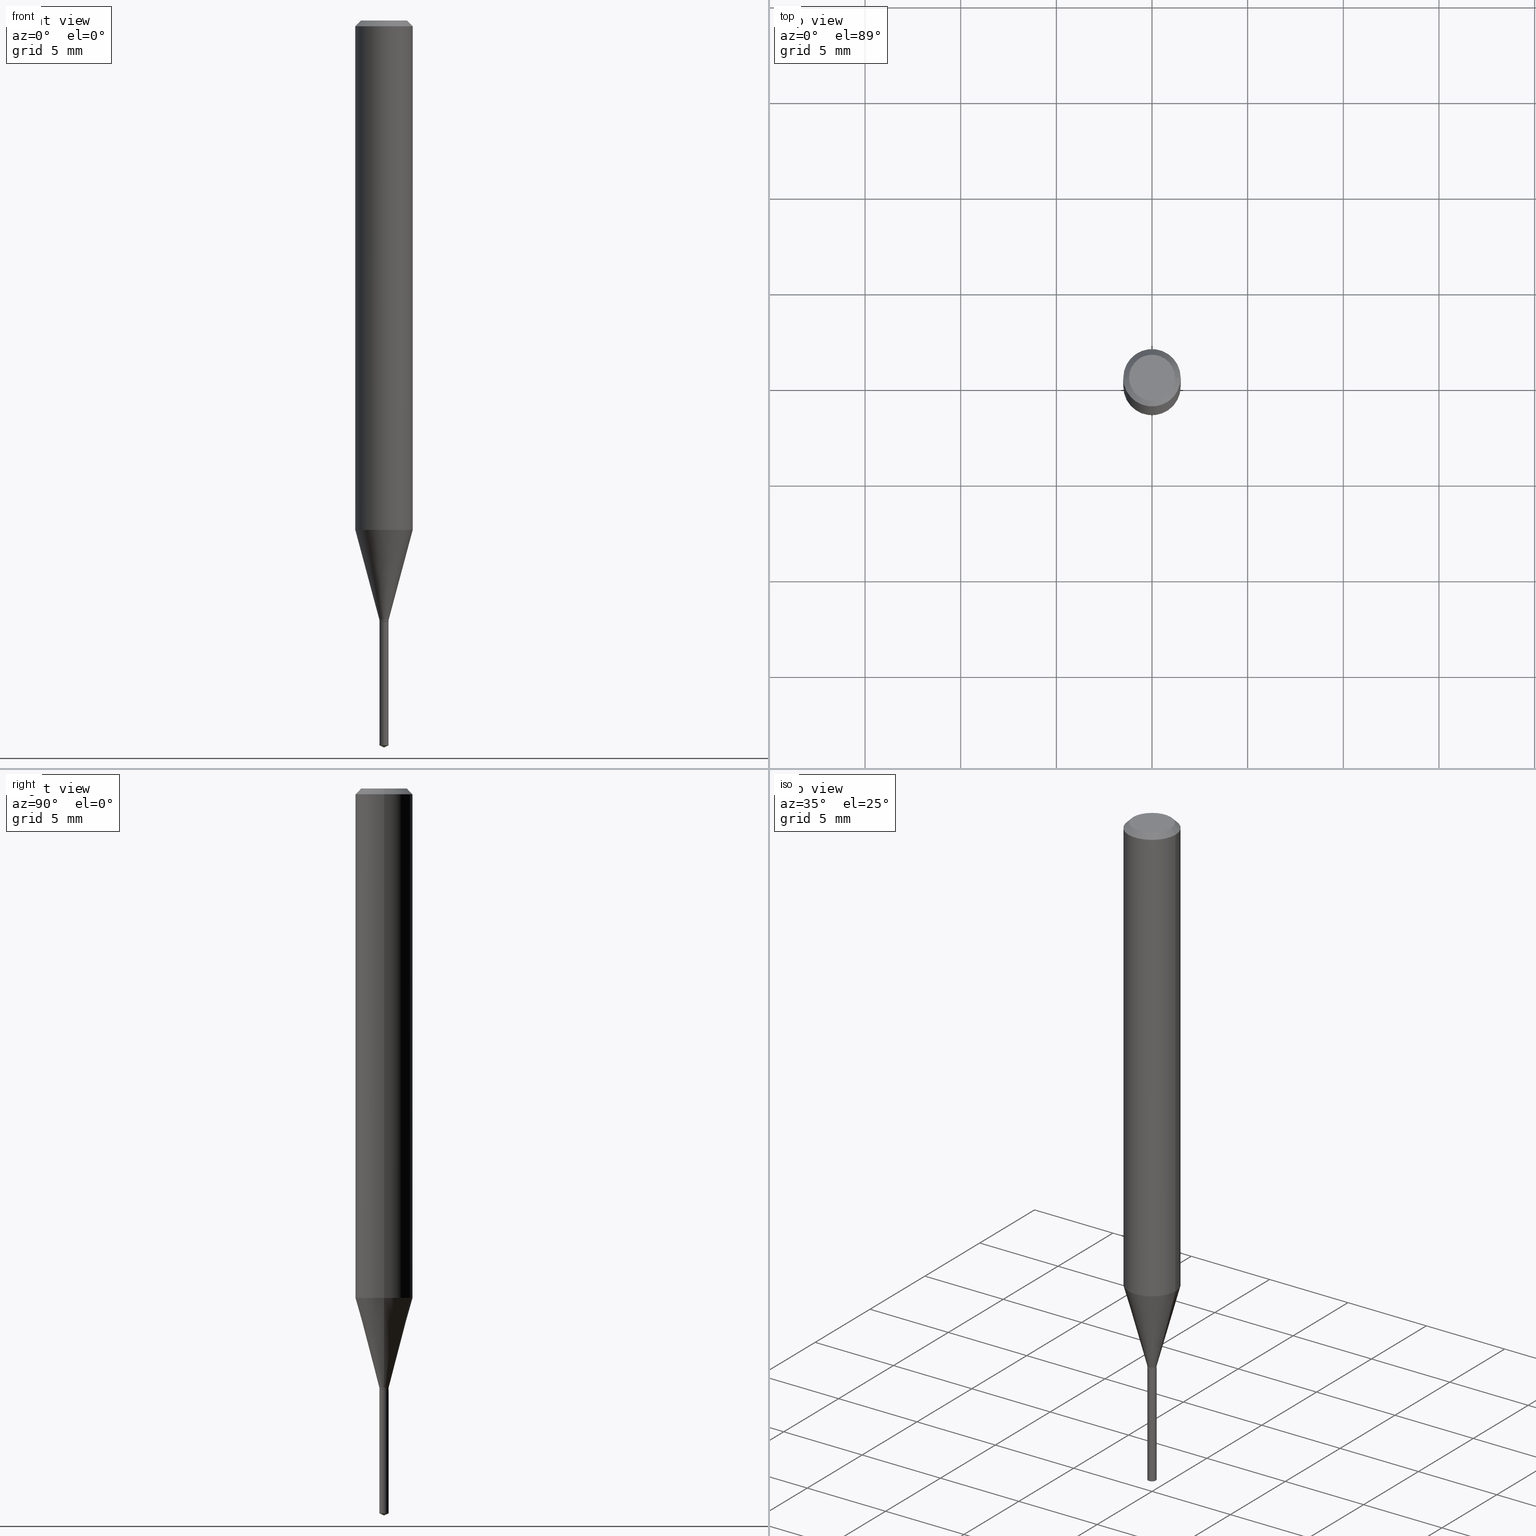
[diagram: canonical four-view strip — front | top / right | iso, engineering-drawing reading convention]
A machine part, canonical four-view strip (front | top / right | iso — engineering-drawing reading convention). The complete STEP part file that produces these views, byte-faithful:
ISO-10303-21;
HEADER;
FILE_DESCRIPTION (( 'STEP AP203' ),
    '1' );
FILE_NAME ('07767.STEP',
    '2024-04-24T02:36:00',
    ( '' ),
    ( '' ),
    'SwSTEP 2.0',
    'SolidWorks 2023',
    '' );
FILE_SCHEMA (( 'CONFIG_CONTROL_DESIGN' ));
ENDSEC;

DATA;
#1 = CARTESIAN_POINT ( 'NONE',  ( 3.658681167148986974E-29, -5.223583815807360950E-15, -1.496099999999999985 ) ) ;
#2 = EDGE_CURVE ( 'NONE', #345, #217, #260, .T. ) ;
#3 = DIRECTION ( 'NONE',  ( 1.000000000000000000, -6.982962677686267499E-15, 4.876176775795935793E-29 ) ) ;
#4 = DIRECTION ( 'NONE',  ( -2.445468806185136597E-29, 3.491481338843145583E-15, 1.000000000000000000 ) ) ;
#5 = CLOSED_SHELL ( 'NONE', ( #135, #232, #242, #255, #59, #193, #200, #272, #362, #93, #406, #195 ) ) ;
#6 = AXIS2_PLACEMENT_3D ( 'NONE', #215, #261, #356 ) ;
#7 = DIRECTION ( 'NONE',  ( -2.445468806185136597E-29, 3.491481338843145583E-15, 1.000000000000000000 ) ) ;
#8 = FACE_OUTER_BOUND ( 'NONE', #462, .T. ) ;
#9 = VERTEX_POINT ( 'NONE', #413 ) ;
#10 = CARTESIAN_POINT ( 'NONE',  ( 3.023333085086683703E-29, -4.316518379211780118E-15, -1.236299999999999955 ) ) ;
#11 = DIRECTION ( 'NONE',  ( -6.982962677686265922E-15, -1.000000000000000000, 0.000000000000000000 ) ) ;
#12 = DIMENSIONAL_EXPONENTS ( 1.000000000000000000, 0.000000000000000000, 0.000000000000000000, 0.000000000000000000, 0.000000000000000000, 0.000000000000000000, 0.000000000000000000 ) ;
#13 = ORIENTED_EDGE ( 'NONE', *, *, #412, .T. ) ;
#14 = AXIS2_PLACEMENT_3D ( 'NONE', #274, #4, #426 ) ;
#15 = CONICAL_SURFACE ( 'NONE', #203, 0.009449999999999998332, 0.2617993877991498519 ) ;
#16 = ORIENTED_EDGE ( 'NONE', *, *, #285, .F. ) ;
#17 = CC_DESIGN_PERSON_AND_ORGANIZATION_ASSIGNMENT ( #301, #265, ( #238 ) ) ;
#18 = APPROVAL_ROLE ( '' ) ;
#19 = VERTEX_POINT ( 'NONE', #214 ) ;
#20 = ADVANCED_BREP_SHAPE_REPRESENTATION ( '07767', ( #453, #446, #393 ), #325 ) ;
#21 = APPLICATION_CONTEXT ( 'configuration controlled 3d designs of mechanical parts and assemblies' ) ;
#22 = EDGE_CURVE ( 'NONE', #19, #319, #56, .T. ) ;
#23 = DIRECTION ( 'NONE',  ( 1.000000000000000000, 0.000000000000000000, 0.000000000000000000 ) ) ;
#24 = ORIENTED_EDGE ( 'NONE', *, *, #382, .T. ) ;
#25 = VECTOR ( 'NONE', #141, 39.37007874015748143 ) ;
#26 = FACE_OUTER_BOUND ( 'NONE', #434, .T. ) ;
#27 = CIRCLE ( 'NONE', #37, 0.008949999999999999623 ) ;
#28 = APPROVAL ( #489, 'UNSPECIFIED' ) ;
#29 = CIRCLE ( 'NONE', #87, 0.009449999999999998332 ) ;
#30 =( CONVERSION_BASED_UNIT ( 'INCH', #256 ) LENGTH_UNIT ( ) NAMED_UNIT ( #12 ) );
#31 = ORIENTED_EDGE ( 'NONE', *, *, #428, .F. ) ;
#32 = APPROVAL_STATUS ( 'not_yet_approved' ) ;
#33 = VERTEX_POINT ( 'NONE', #75 ) ;
#34 = CARTESIAN_POINT ( 'NONE',  ( 0.000000000000000000, 0.000000000000000000, 0.000000000000000000 ) ) ;
#35 = LINE ( 'NONE', #178, #458 ) ;
#36 = AXIS2_PLACEMENT_3D ( 'NONE', #333, #79, #226 ) ;
#37 = AXIS2_PLACEMENT_3D ( 'NONE', #366, #480, #328 ) ;
#38 = CALENDAR_DATE ( 2024, 23, 4 ) ;
#39 = FACE_OUTER_BOUND ( 'NONE', #318, .T. ) ;
#40 = CC_DESIGN_APPROVAL ( #28, ( #386 ) ) ;
#41 = APPROVAL_DATE_TIME ( #289, #340 ) ;
#42 = LINE ( 'NONE', #185, #244 ) ;
#43 = EDGE_CURVE ( 'NONE', #201, #97, #102, .T. ) ;
#44 = CARTESIAN_POINT ( 'NONE',  ( 6.714628852935969127E-17, 0.009449999999995684075, -1.236299999999999955 ) ) ;
#45 = CARTESIAN_POINT ( 'NONE',  ( 8.265746106709734507E-48, -1.180129479067563789E-33, -3.380025165646692144E-19 ) ) ;
#46 = PERSON ( 'UNSPECIFIED', 'UNSPECIFIED', 'UNSPECIFIED', ('UNSPECIFIED'), ('UNSPECIFIED'), ('UNSPECIFIED') ) ;
#47 = CARTESIAN_POINT ( 'NONE',  ( -0.008949999999999999623, -4.250275577187140643E-15, -1.236299999999999955 ) ) ;
#48 = VECTOR ( 'NONE', #105, 39.37007874015748143 ) ;
#49 = CONICAL_SURFACE ( 'NONE', #96, 84.42940631927592676, 1.134464013796323112 ) ;
#50 = EDGE_LOOP ( 'NONE', ( #210, #475, #444, #278 ) ) ;
#51 = DIRECTION ( 'NONE',  ( 0.2588190451025211281, 1.565188264969622954E-15, 0.9659258262890679791 ) ) ;
#52 = ADVANCED_FACE ( 'NONE', ( #39 ), #350, .T. ) ;
#53 = CARTESIAN_POINT ( 'NONE',  ( 0.000000000000000000, 0.000000000000000000, 0.000000000000000000 ) ) ;
#54 = LINE ( 'NONE', #154, #271 ) ;
#55 = CARTESIAN_POINT ( 'NONE',  ( 3.016485772429365584E-29, -4.306742231463019698E-15, -1.233499999999999819 ) ) ;
#56 = CIRCLE ( 'NONE', #139, 0.05905000000000013016 ) ;
#57 = CARTESIAN_POINT ( 'NONE',  ( -6.598899730410497825E-17, -0.009450000000004316059, -1.236299999999999955 ) ) ;
#58 = DIRECTION ( 'NONE',  ( 1.000000000000000000, -6.982962677686266711E-15, 4.876176775795936353E-29 ) ) ;
#59 = ADVANCED_FACE ( 'NONE', ( #330 ), #419, .T. ) ;
#60 = ORIENTED_EDGE ( 'NONE', *, *, #227, .T. ) ;
#61 = VERTEX_POINT ( 'NONE', #457 ) ;
#62 = CIRCLE ( 'NONE', #400, 0.009450000000000000067 ) ;
#63 = COORDINATED_UNIVERSAL_TIME_OFFSET ( 5, 0, .BEHIND. ) ;
#64 = ORIENTED_EDGE ( 'NONE', *, *, #259, .F. ) ;
#65 = ADVANCED_FACE ( 'NONE', ( #335 ), #74, .T. ) ;
#66 = DIRECTION ( 'NONE',  ( 1.000000000000000000, -6.982962677686266711E-15, 0.000000000000000000 ) ) ;
#67 = ORIENTED_EDGE ( 'NONE', *, *, #103, .F. ) ;
#68 = CC_DESIGN_PERSON_AND_ORGANIZATION_ASSIGNMENT ( #337, #149, ( #386 ) ) ;
#69 = PERSON_AND_ORGANIZATION ( #46, #110 ) ;
#70 = ORIENTED_EDGE ( 'NONE', *, *, #113, .T. ) ;
#71 = DIRECTION ( 'NONE',  ( 2.445468806185136597E-29, -3.491481338843145583E-15, -1.000000000000000000 ) ) ;
#72 = PERSON_AND_ORGANIZATION_ROLE ( 'design_owner' ) ;
#73 = ORIENTED_EDGE ( 'NONE', *, *, #190, .T. ) ;
#74 = CYLINDRICAL_SURFACE ( 'NONE', #449, 0.009450000000000000067 ) ;
#75 = CARTESIAN_POINT ( 'NONE',  ( 0.05904999999999999832, -4.535783407291118600E-16, -0.01181000000000007565 ) ) ;
#76 = CARTESIAN_POINT ( 'NONE',  ( 0.04724000000000000421, -3.852183633974369345E-16, -3.380025165621689721E-19 ) ) ;
#77 = DIRECTION ( 'NONE',  ( -6.982962677686265922E-15, -1.000000000000000000, 0.000000000000000000 ) ) ;
#78 = EDGE_CURVE ( 'NONE', #9, #201, #42, .T. ) ;
#79 = DIRECTION ( 'NONE',  ( 2.438088387897960049E-29, -3.491481338843145188E-15, -1.000000000000000000 ) ) ;
#80 = DIRECTION ( 'NONE',  ( 6.439704144417050863E-15, 0.9063077870366551547, 0.4226182617406882835 ) ) ;
#81 = ORIENTED_EDGE ( 'NONE', *, *, #370, .T. ) ;
#82 = EDGE_CURVE ( 'NONE', #167, #33, #338, .T. ) ;
#83 = CARTESIAN_POINT ( 'NONE',  ( 3.658642969568890811E-29, -5.223638041421501490E-15, -1.496099999999999985 ) ) ;
#84 = DIRECTION ( 'NONE',  ( -2.445468806185136877E-29, 3.491481338843145188E-15, 1.000000000000000000 ) ) ;
#85 = CARTESIAN_POINT ( 'NONE',  ( 3.016485772429365584E-29, -4.306742231463019698E-15, -1.233499999999999819 ) ) ;
#86 = FACE_OUTER_BOUND ( 'NONE', #127, .T. ) ;
#87 = AXIS2_PLACEMENT_3D ( 'NONE', #150, #311, #388 ) ;
#88 = EDGE_CURVE ( 'NONE', #252, #206, #35, .T. ) ;
#89 = DIRECTION ( 'NONE',  ( 1.000000000000000000, -6.982962677686265133E-15, 0.000000000000000000 ) ) ;
#90 = ORIENTED_EDGE ( 'NONE', *, *, #382, .F. ) ;
#91 = CARTESIAN_POINT ( 'NONE',  ( 0.009449999999999998332, -4.372731228767154900E-15, -1.233499999999999819 ) ) ;
#92 = ORIENTED_EDGE ( 'NONE', *, *, #143, .T. ) ;
#93 = ADVANCED_FACE ( 'NONE', ( #101 ), #111, .F. ) ;
#94 = ORIENTED_EDGE ( 'NONE', *, *, #292, .F. ) ;
#95 = CIRCLE ( 'NONE', #14, 0.04724000000000000421 ) ;
#96 = AXIS2_PLACEMENT_3D ( 'NONE', #98, #398, #320 ) ;
#97 = VERTEX_POINT ( 'NONE', #380 ) ;
#98 = CARTESIAN_POINT ( 'NONE',  ( -9.261903463803131862E-28, 1.322371477110797904E-13, 37.87397874015748300 ) ) ;
#99 = DATE_AND_TIME ( #131, #116 ) ;
#100 = ORIENTED_EDGE ( 'NONE', *, *, #249, .T. ) ;
#101 = FACE_OUTER_BOUND ( 'NONE', #341, .T. ) ;
#102 = CIRCLE ( 'NONE', #269, 0.009450000000000000067 ) ;
#103 = EDGE_CURVE ( 'NONE', #167, #283, #168, .T. ) ;
#104 = DIRECTION ( 'NONE',  ( -2.445453492125453683E-29, 3.491503269448233447E-15, 1.000000000000000000 ) ) ;
#105 = DIRECTION ( 'NONE',  ( -2.445453492125453683E-29, 3.491503269448233447E-15, 1.000000000000000000 ) ) ;
#106 = ORIENTED_EDGE ( 'NONE', *, *, #412, .F. ) ;
#107 = CARTESIAN_POINT ( 'NONE',  ( 0.008949999999999999623, -4.379015895177073101E-15, -1.236299999999999955 ) ) ;
#108 = EDGE_CURVE ( 'NONE', #321, #61, #293, .T. ) ;
#109 = CARTESIAN_POINT ( 'NONE',  ( 3.023333085086683703E-29, -4.316518379211780118E-15, -1.236299999999999955 ) ) ;
#110 = ORGANIZATION ( 'UNSPECIFIED', 'UNSPECIFIED', '' ) ;
#111 = PLANE ( 'NONE',  #36 ) ;
#112 = CC_DESIGN_DATE_AND_TIME_ASSIGNMENT ( #99, #286, ( #123 ) ) ;
#113 = EDGE_CURVE ( 'NONE', #19, #33, #354, .T. ) ;
#114 = CARTESIAN_POINT ( 'NONE',  ( -0.05905000000000013016, -3.240859612784714140E-15, -1.048390279944583448 ) ) ;
#115 = AXIS2_PLACEMENT_3D ( 'NONE', #182, #104, #372 ) ;
#116 = LOCAL_TIME ( 22, 36, 0.000000000000000000, #63 ) ;
#117 = ORIENTED_EDGE ( 'NONE', *, *, #279, .F. ) ;
#118 = DIRECTION ( 'NONE',  ( 1.000000000000000000, -6.982962677686266711E-15, 4.876176775795936353E-29 ) ) ;
#119 = CARTESIAN_POINT ( 'NONE',  ( 3.023333085086683703E-29, -4.316518379211780118E-15, -1.236299999999999955 ) ) ;
#120 = DIRECTION ( 'NONE',  ( -2.445468806185136597E-29, 3.491481338843145583E-15, 1.000000000000000000 ) ) ;
#121 = VECTOR ( 'NONE', #355, 39.37007874015748854 ) ;
#122 = AXIS2_PLACEMENT_3D ( 'NONE', #197, #309, #465 ) ;
#123 = PRODUCT_DEFINITION ( 'UNKNOWN', '', #238, #445 ) ;
#124 = DIRECTION ( 'NONE',  ( -2.445468806185136597E-29, 3.491481338843145583E-15, 1.000000000000000000 ) ) ;
#125 = ORIENTED_EDGE ( 'NONE', *, *, #78, .T. ) ;
#126 = EDGE_CURVE ( 'NONE', #283, #167, #95, .T. ) ;
#127 = EDGE_LOOP ( 'NONE', ( #471, #297, #474, #479 ) ) ;
#128 = ORIENTED_EDGE ( 'NONE', *, *, #172, .F. ) ;
#129 = AXIS2_PLACEMENT_3D ( 'NONE', #306, #461, #344 ) ;
#130 = VECTOR ( 'NONE', #470, 39.37007874015748854 ) ;
#131 = CALENDAR_DATE ( 2024, 23, 4 ) ;
#132 = ORIENTED_EDGE ( 'NONE', *, *, #22, .F. ) ;
#133 =( LENGTH_UNIT ( ) NAMED_UNIT ( * ) SI_UNIT ( $, .METRE. ) );
#134 = CARTESIAN_POINT ( 'NONE',  ( -0.009449999999999998332, 6.714628852932945571E-17, -4.648393660290885280E-31 ) ) ;
#135 = ADVANCED_FACE ( 'NONE', ( #148 ), #377, .T. ) ;
#136 = COORDINATED_UNIVERSAL_TIME_OFFSET ( 5, 0, .BEHIND. ) ;
#137 = DIRECTION ( 'NONE',  ( 1.000000000000000000, -6.982962677686266711E-15, 4.876185090822587894E-29 ) ) ;
#138 = UNCERTAINTY_MEASURE_WITH_UNIT (LENGTH_MEASURE( 1.000000000000000082E-05 ), #30, 'distance_accuracy_value', 'NONE');
#139 = AXIS2_PLACEMENT_3D ( 'NONE', #379, #416, #263 ) ;
#140 = CIRCLE ( 'NONE', #237, 0.05905000000000013016 ) ;
#141 = DIRECTION ( 'NONE',  ( -2.445468806185136877E-29, 3.491481338843145188E-15, 1.000000000000000000 ) ) ;
#142 = ORIENTED_EDGE ( 'NONE', *, *, #216, .T. ) ;
#143 = EDGE_CURVE ( 'NONE', #61, #97, #228, .T. ) ;
#144 = CARTESIAN_POINT ( 'NONE',  ( 3.016485772429365584E-29, -4.306742231463019698E-15, -1.233499999999999819 ) ) ;
#145 = ORIENTED_EDGE ( 'NONE', *, *, #467, .T. ) ;
#146 = DIRECTION ( 'NONE',  ( 0.7071067811865452413, -7.319954787623248157E-15, -0.7071067811865497932 ) ) ;
#147 = CIRCLE ( 'NONE', #488, 0.009450000000000000067 ) ;
#148 = FACE_OUTER_BOUND ( 'NONE', #50, .T. ) ;
#149 = PERSON_AND_ORGANIZATION_ROLE ( 'classification_officer' ) ;
#150 = CARTESIAN_POINT ( 'NONE',  ( 3.022110350683592022E-29, -4.314772638542359403E-15, -1.235800000000000010 ) ) ;
#151 = FACE_OUTER_BOUND ( 'NONE', #486, .T. ) ;
#152 = CIRCLE ( 'NONE', #316, 0.009449999999999998332 ) ;
#153 = CONICAL_SURFACE ( 'NONE', #440, 0.009449999999999998332, 0.2617993877991498519 ) ;
#154 = CARTESIAN_POINT ( 'NONE',  ( 3.658642969568891371E-29, -5.223638041421501490E-15, -1.496099999999999985 ) ) ;
#155 = DIRECTION ( 'NONE',  ( -2.445453492125453683E-29, 3.491503269448233447E-15, 1.000000000000000000 ) ) ;
#156 = EDGE_CURVE ( 'NONE', #206, #217, #152, .T. ) ;
#157 = CARTESIAN_POINT ( 'NONE',  ( 0.009449999999999998332, -4.380761635846493816E-15, -1.235800000000000010 ) ) ;
#158 = CYLINDRICAL_SURFACE ( 'NONE', #294, 0.009449999999999998332 ) ;
#159 = AXIS2_PLACEMENT_3D ( 'NONE', #258, #180, #262 ) ;
#160 = ORIENTED_EDGE ( 'NONE', *, *, #454, .F. ) ;
#161 = LOCAL_TIME ( 22, 36, 0.000000000000000000, #181 ) ;
#162 = ADVANCED_FACE ( 'NONE', ( #415 ), #186, .T. ) ;
#163 = EDGE_LOOP ( 'NONE', ( #198, #90 ) ) ;
#164 = EDGE_CURVE ( 'NONE', #395, #252, #305, .T. ) ;
#165 = COORDINATED_UNIVERSAL_TIME_OFFSET ( 5, 0, .BEHIND. ) ;
#166 = ORIENTED_EDGE ( 'NONE', *, *, #285, .T. ) ;
#167 = VERTEX_POINT ( 'NONE', #76 ) ;
#168 = CIRCLE ( 'NONE', #417, 0.04724000000000000421 ) ;
#169 = AXIS2_PLACEMENT_3D ( 'NONE', #456, #257, #253 ) ;
#170 = LOCAL_TIME ( 22, 36, 0.000000000000000000, #136 ) ;
#171 = CARTESIAN_POINT ( 'NONE',  ( 2.888098660104664642E-31, -4.123439461173780879E-17, -0.01181000000000007565 ) ) ;
#172 = EDGE_CURVE ( 'NONE', #319, #373, #332, .T. ) ;
#173 = VERTEX_POINT ( 'NONE', #47 ) ;
#174 = APPLICATION_PROTOCOL_DEFINITION ( 'international standard', 'config_control_design', 1994, #414 ) ;
#175 = ORIENTED_EDGE ( 'NONE', *, *, #2, .F. ) ;
#176 = DIRECTION ( 'NONE',  ( -2.445453492125453683E-29, 3.491503269448233447E-15, 1.000000000000000000 ) ) ;
#177 = PERSON_AND_ORGANIZATION_ROLE ( 'creator' ) ;
#178 = CARTESIAN_POINT ( 'NONE',  ( 0.009449999999999998332, -6.598899730413521381E-17, 4.607987053127158610E-31 ) ) ;
#179 = CLOSED_SHELL ( 'NONE', ( #65, #52, #331, #162, #313 ) ) ;
#180 = DIRECTION ( 'NONE',  ( -2.445453492125453683E-29, 3.491503269448233447E-15, 1.000000000000000000 ) ) ;
#181 = COORDINATED_UNIVERSAL_TIME_OFFSET ( 5, 0, .BEHIND. ) ;
#182 = CARTESIAN_POINT ( 'NONE',  ( -9.261903463803131862E-28, 1.322371477110797904E-13, 37.87397874015748300 ) ) ;
#183 = PERSON_AND_ORGANIZATION_ROLE ( 'creator' ) ;
#184 = LINE ( 'NONE', #374, #288 ) ;
#185 = CARTESIAN_POINT ( 'NONE',  ( -6.598899730410497825E-17, -0.009450000000004316059, -1.236299999999999955 ) ) ;
#186 = CYLINDRICAL_SURFACE ( 'NONE', #221, 0.009450000000000000067 ) ;
#187 = DATE_TIME_ROLE ( 'classification_date' ) ;
#188 = ORIENTED_EDGE ( 'NONE', *, *, #370, .F. ) ;
#189 = CC_DESIGN_APPROVAL ( #340, ( #238 ) ) ;
#190 = EDGE_CURVE ( 'NONE', #9, #61, #303, .T. ) ;
#191 = CARTESIAN_POINT ( 'NONE',  ( 0.000000000000000000, 0.000000000000000000, 0.000000000000000000 ) ) ;
#192 = DATE_AND_TIME ( #375, #161 ) ;
#193 = ADVANCED_FACE ( 'NONE', ( #273 ), #158, .T. ) ;
#194 = DIRECTION ( 'NONE',  ( 1.000000000000000000, -6.982962677686295898E-15, 0.000000000000000000 ) ) ;
#195 = ADVANCED_FACE ( 'NONE', ( #151 ), #431, .T. ) ;
#196 = DIRECTION ( 'NONE',  ( -2.445468806185136597E-29, 3.491481338843145583E-15, 1.000000000000000000 ) ) ;
#197 = CARTESIAN_POINT ( 'NONE',  ( 2.888098660104664642E-31, -4.123439461173780879E-17, -0.01181000000000007565 ) ) ;
#198 = ORIENTED_EDGE ( 'NONE', *, *, #336, .F. ) ;
#199 = CYLINDRICAL_SURFACE ( 'NONE', #423, 0.05905000000000006771 ) ;
#200 = ADVANCED_FACE ( 'NONE', ( #424 ), #153, .T. ) ;
#201 = VERTEX_POINT ( 'NONE', #57 ) ;
#202 = EDGE_LOOP ( 'NONE', ( #73, #92, #327, #476 ) ) ;
#203 = AXIS2_PLACEMENT_3D ( 'NONE', #55, #196, #351 ) ;
#204 = DIRECTION ( 'NONE',  ( -2.445468806185136597E-29, 3.491481338843145583E-15, 1.000000000000000000 ) ) ;
#205 = APPROVAL_STATUS ( 'not_yet_approved' ) ;
#206 = VERTEX_POINT ( 'NONE', #241 ) ;
#207 = DIRECTION ( 'NONE',  ( 1.000000000000000000, -6.982962677686298265E-15, 0.000000000000000000 ) ) ;
#208 = PRODUCT_DEFINITION_SHAPE ( 'NONE', 'NONE',  #123 ) ;
#209 = DIRECTION ( 'NONE',  ( 0.000000000000000000, 0.000000000000000000, 1.000000000000000000 ) ) ;
#210 = ORIENTED_EDGE ( 'NONE', *, *, #336, .T. ) ;
#211 = CARTESIAN_POINT ( 'NONE',  ( -0.009449999999999998332, -4.243611146473359590E-15, -1.235800000000000010 ) ) ;
#212 = ORIENTED_EDGE ( 'NONE', *, *, #88, .T. ) ;
#213 = CARTESIAN_POINT ( 'NONE',  ( -0.05904999999999999832, -1.431259260965055596E-15, -0.01181000000000007565 ) ) ;
#214 = CARTESIAN_POINT ( 'NONE',  ( 0.05905000000000013016, -4.072779044368429342E-15, -1.048390279944583448 ) ) ;
#215 = CARTESIAN_POINT ( 'NONE',  ( 2.888098660104664642E-31, -4.123439461173780879E-17, -0.01181000000000007565 ) ) ;
#216 = EDGE_CURVE ( 'NONE', #217, #319, #433, .T. ) ;
#217 = VERTEX_POINT ( 'NONE', #349 ) ;
#218 = PERSON_AND_ORGANIZATION ( #46, #110 ) ;
#219 = ORIENTED_EDGE ( 'NONE', *, *, #428, .T. ) ;
#220 = CC_DESIGN_PERSON_AND_ORGANIZATION_ASSIGNMENT ( #409, #177, ( #123 ) ) ;
#221 = AXIS2_PLACEMENT_3D ( 'NONE', #339, #176, #381 ) ;
#222 = AXIS2_PLACEMENT_3D ( 'NONE', #429, #490, #463 ) ;
#223 = CARTESIAN_POINT ( 'NONE',  ( -0.05905000000000006771, 4.195754854663396409E-16, -2.904631170795525045E-30 ) ) ;
#224 = ORIENTED_EDGE ( 'NONE', *, *, #422, .T. ) ;
#225 = APPROVAL_ROLE ( '' ) ;
#226 = DIRECTION ( 'NONE',  ( -1.000000000000000000, 6.982962677686265922E-15, -4.876176775795935793E-29 ) ) ;
#227 = EDGE_CURVE ( 'NONE', #252, #345, #29, .T. ) ;
#228 = LINE ( 'NONE', #44, #48 ) ;
#229 = APPROVAL_PERSON_ORGANIZATION ( #218, #28, #225 ) ;
#230 = DIRECTION ( 'NONE',  ( -2.438088387897960049E-29, 3.491481338843145188E-15, 1.000000000000000000 ) ) ;
#231 = CARTESIAN_POINT ( 'NONE',  ( -0.009449999999999998332, -4.239595942933689737E-15, -1.233499999999999819 ) ) ;
#232 = ADVANCED_FACE ( 'NONE', ( #8 ), #368, .T. ) ;
#233 = DIRECTION ( 'NONE',  ( -2.445468806185136597E-29, 3.491481338843145583E-15, 1.000000000000000000 ) ) ;
#234 = LINE ( 'NONE', #468, #130 ) ;
#235 = DIRECTION ( 'NONE',  ( -6.982962677686265922E-15, -1.000000000000000000, 0.000000000000000000 ) ) ;
#236 = VECTOR ( 'NONE', #298, 39.37007874015748854 ) ;
#237 = AXIS2_PLACEMENT_3D ( 'NONE', #357, #233, #89 ) ;
#238 = PRODUCT_DEFINITION_FORMATION_WITH_SPECIFIED_SOURCE ( 'ANY', '', #418, .NOT_KNOWN. ) ;
#239 = FACE_OUTER_BOUND ( 'NONE', #367, .T. ) ;
#240 = ORIENTED_EDGE ( 'NONE', *, *, #164, .T. ) ;
#241 = CARTESIAN_POINT ( 'NONE',  ( 0.009449999999999998332, -4.372731228767154900E-15, -1.233499999999999819 ) ) ;
#242 = ADVANCED_FACE ( 'NONE', ( #86 ), #199, .T. ) ;
#243 = ORIENTED_EDGE ( 'NONE', *, *, #43, .T. ) ;
#244 = VECTOR ( 'NONE', #291, 39.37007874015748143 ) ;
#245 = EDGE_LOOP ( 'NONE', ( #437, #384, #13, #224 ) ) ;
#246 = CIRCLE ( 'NONE', #477, 0.009449999999999998332 ) ;
#247 = CARTESIAN_POINT ( 'NONE',  ( 3.016485772429365584E-29, -4.306742231463019698E-15, -1.233499999999999819 ) ) ;
#248 = ORIENTED_EDGE ( 'NONE', *, *, #143, .F. ) ;
#249 = EDGE_CURVE ( 'NONE', #319, #19, #140, .T. ) ;
#250 = DIRECTION ( 'NONE',  ( 1.000000000000000000, -6.982962677686295898E-15, 0.000000000000000000 ) ) ;
#251 = PERSON_AND_ORGANIZATION ( #46, #110 ) ;
#252 = VERTEX_POINT ( 'NONE', #157 ) ;
#253 = DIRECTION ( 'NONE',  ( 1.000000000000000000, -6.982962677686267499E-15, 4.876176775795935793E-29 ) ) ;
#254 = CIRCLE ( 'NONE', #432, 0.009449999999999998332 ) ;
#255 = ADVANCED_FACE ( 'NONE', ( #436 ), #15, .T. ) ;
#256 = LENGTH_MEASURE_WITH_UNIT ( LENGTH_MEASURE( 0.02539999999999999897 ), #133 );
#257 = DIRECTION ( 'NONE',  ( -2.445468806185136597E-29, 3.491481338843145583E-15, 1.000000000000000000 ) ) ;
#258 = CARTESIAN_POINT ( 'NONE',  ( 3.647885748960549596E-29, -5.208225244576422612E-15, -1.491693392630435211 ) ) ;
#259 = EDGE_CURVE ( 'NONE', #61, #9, #62, .T. ) ;
#260 = LINE ( 'NONE', #134, #399 ) ;
#261 = DIRECTION ( 'NONE',  ( -2.445468806185136597E-29, 3.491481338843145583E-15, 1.000000000000000000 ) ) ;
#262 = DIRECTION ( 'NONE',  ( -6.982962677686265922E-15, -1.000000000000000000, 0.000000000000000000 ) ) ;
#263 = DIRECTION ( 'NONE',  ( 1.000000000000000000, -6.982962677686265133E-15, 0.000000000000000000 ) ) ;
#264 = AXIS2_PLACEMENT_3D ( 'NONE', #10, #230, #435 ) ;
#265 = PERSON_AND_ORGANIZATION_ROLE ( 'design_supplier' ) ;
#266 = EDGE_LOOP ( 'NONE', ( #365, #81, #397, #421 ) ) ;
#267 = SECURITY_CLASSIFICATION_LEVEL ( 'unclassified' ) ;
#268 = CARTESIAN_POINT ( 'NONE',  ( 0.05905000000000006771, -4.123439461173745257E-16, 2.879382386107503723E-30 ) ) ;
#269 = AXIS2_PLACEMENT_3D ( 'NONE', #485, #410, #452 ) ;
#270 = CARTESIAN_POINT ( 'NONE',  ( -0.04724000000000000421, 3.504923541997677355E-16, -3.380025165670481712E-19 ) ) ;
#271 = VECTOR ( 'NONE', #427, 39.37007874015748854 ) ;
#272 = ADVANCED_FACE ( 'NONE', ( #239 ), #466, .T. ) ;
#273 = FACE_OUTER_BOUND ( 'NONE', #369, .T. ) ;
#274 = CARTESIAN_POINT ( 'NONE',  ( 8.265746106709734507E-48, -1.180129479067563789E-33, -3.380025165646692144E-19 ) ) ;
#275 = DIRECTION ( 'NONE',  ( -2.445468806185136597E-29, 3.491481338843145583E-15, 1.000000000000000000 ) ) ;
#276 = FACE_OUTER_BOUND ( 'NONE', #442, .T. ) ;
#277 = CIRCLE ( 'NONE', #407, 0.05904999999999999832 ) ;
#278 = ORIENTED_EDGE ( 'NONE', *, *, #164, .F. ) ;
#279 = EDGE_CURVE ( 'NONE', #97, #201, #147, .T. ) ;
#280 = DIRECTION ( 'NONE',  ( 1.000000000000000000, -6.982962677686246200E-15, 0.000000000000000000 ) ) ;
#281 = EDGE_LOOP ( 'NONE', ( #248, #402, #125, #117 ) ) ;
#282 = CC_DESIGN_PERSON_AND_ORGANIZATION_ASSIGNMENT ( #387, #183, ( #238 ) ) ;
#283 = VERTEX_POINT ( 'NONE', #270 ) ;
#284 = FACE_OUTER_BOUND ( 'NONE', #245, .T. ) ;
#285 = EDGE_CURVE ( 'NONE', #345, #252, #254, .T. ) ;
#286 = DATE_TIME_ROLE ( 'creation_date' ) ;
#287 = ORIENTED_EDGE ( 'NONE', *, *, #279, .T. ) ;
#288 = VECTOR ( 'NONE', #359, 39.37007874015748143 ) ;
#289 = DATE_AND_TIME ( #441, #343 ) ;
#290 = ORIENTED_EDGE ( 'NONE', *, *, #88, .F. ) ;
#291 = DIRECTION ( 'NONE',  ( -2.445453492125453683E-29, 3.491503269448233447E-15, 1.000000000000000000 ) ) ;
#292 = EDGE_CURVE ( 'NONE', #206, #19, #469, .T. ) ;
#293 = LINE ( 'NONE', #1, #385 ) ;
#294 = AXIS2_PLACEMENT_3D ( 'NONE', #315, #392, #3 ) ;
#295 = AXIS2_PLACEMENT_3D ( 'NONE', #322, #204, #250 ) ;
#296 = CC_DESIGN_PERSON_AND_ORGANIZATION_ASSIGNMENT ( #69, #72, ( #418 ) ) ;
#297 = ORIENTED_EDGE ( 'NONE', *, *, #172, .T. ) ;
#298 = DIRECTION ( 'NONE',  ( 0.7071067811866184050, -2.468850131082999773E-15, 0.7071067811864765185 ) ) ;
#299 = COORDINATED_UNIVERSAL_TIME_OFFSET ( 5, 0, .BEHIND. ) ;
#300 = DIRECTION ( 'NONE',  ( -2.445468806185136877E-29, 3.491481338843145188E-15, 1.000000000000000000 ) ) ;
#301 = PERSON_AND_ORGANIZATION ( #46, #110 ) ;
#302 = DIRECTION ( 'NONE',  ( -2.445468806185136877E-29, 3.491481338843145188E-15, 1.000000000000000000 ) ) ;
#303 = CIRCLE ( 'NONE', #159, 0.009450000000000000067 ) ;
#304 = APPROVAL_PERSON_ORGANIZATION ( #251, #340, #364 ) ;
#305 = LINE ( 'NONE', #107, #236 ) ;
#306 = CARTESIAN_POINT ( 'NONE',  ( 3.023333085086683703E-29, -4.316518379211780118E-15, -1.236299999999999955 ) ) ;
#307 = CARTESIAN_POINT ( 'NONE',  ( 3.022110350683592022E-29, -4.314772638542359403E-15, -1.235800000000000010 ) ) ;
#308 = VECTOR ( 'NONE', #84, 39.37007874015748143 ) ;
#309 = DIRECTION ( 'NONE',  ( 2.445468806185136597E-29, -3.491481338843145583E-15, -1.000000000000000000 ) ) ;
#310 = CIRCLE ( 'NONE', #6, 0.05904999999999999832 ) ;
#311 = DIRECTION ( 'NONE',  ( -2.445468806185136597E-29, 3.491481338843145583E-15, 1.000000000000000000 ) ) ;
#312 = DIRECTION ( 'NONE',  ( -2.445453492125453683E-29, 3.491503269448233447E-15, 1.000000000000000000 ) ) ;
#313 = ADVANCED_FACE ( 'NONE', ( #276 ), #347, .F. ) ;
#314 = ORIENTED_EDGE ( 'NONE', *, *, #108, .T. ) ;
#315 = CARTESIAN_POINT ( 'NONE',  ( 0.000000000000000000, 0.000000000000000000, 0.000000000000000000 ) ) ;
#316 = AXIS2_PLACEMENT_3D ( 'NONE', #144, #420, #460 ) ;
#317 = CIRCLE ( 'NONE', #295, 0.008949999999999999623 ) ;
#318 = EDGE_LOOP ( 'NONE', ( #31, #314, #405 ) ) ;
#319 = VERTEX_POINT ( 'NONE', #114 ) ;
#320 = DIRECTION ( 'NONE',  ( -6.982962677686268288E-15, -1.000000000000000000, 3.520397390770387606E-15 ) ) ;
#321 = VERTEX_POINT ( 'NONE', #83 ) ;
#322 = CARTESIAN_POINT ( 'NONE',  ( 3.023333085086683703E-29, -4.316518379211780118E-15, -1.236299999999999955 ) ) ;
#323 = APPROVAL ( #32, 'UNSPECIFIED' ) ;
#324 = ORIENTED_EDGE ( 'NONE', *, *, #156, .T. ) ;
#325 =( GEOMETRIC_REPRESENTATION_CONTEXT ( 3 ) GLOBAL_UNCERTAINTY_ASSIGNED_CONTEXT ( ( #138 ) ) GLOBAL_UNIT_ASSIGNED_CONTEXT ( ( #30, #451, #329 ) ) REPRESENTATION_CONTEXT ( 'NONE', 'WORKASPACE' ) );
#326 = DIRECTION ( 'NONE',  ( -1.000000000000000000, 6.982962677686266711E-15, 0.000000000000000000 ) ) ;
#327 = ORIENTED_EDGE ( 'NONE', *, *, #43, .F. ) ;
#328 = DIRECTION ( 'NONE',  ( 1.000000000000000000, -6.982962677686295898E-15, 0.000000000000000000 ) ) ;
#329 =( NAMED_UNIT ( * ) SI_UNIT ( $, .STERADIAN. ) SOLID_ANGLE_UNIT ( ) );
#330 = FACE_OUTER_BOUND ( 'NONE', #376, .T. ) ;
#331 = ADVANCED_FACE ( 'NONE', ( #26 ), #49, .T. ) ;
#332 = LINE ( 'NONE', #223, #25 ) ;
#333 = CARTESIAN_POINT ( 'NONE',  ( 4.132873053354867254E-48, -5.900647395337818946E-34, -1.690012582823346072E-19 ) ) ;
#334 = AXIS2_PLACEMENT_3D ( 'NONE', #53, #275, #58 ) ;
#335 = FACE_OUTER_BOUND ( 'NONE', #202, .T. ) ;
#336 = EDGE_CURVE ( 'NONE', #395, #173, #317, .T. ) ;
#337 = PERSON_AND_ORGANIZATION ( #46, #110 ) ;
#338 = LINE ( 'NONE', #487, #391 ) ;
#339 = CARTESIAN_POINT ( 'NONE',  ( 3.023333085086683703E-29, -4.316518379211780118E-15, -1.236299999999999955 ) ) ;
#340 = APPROVAL ( #205, 'UNSPECIFIED' ) ;
#341 = EDGE_LOOP ( 'NONE', ( #430, #358 ) ) ;
#342 = AXIS2_PLACEMENT_3D ( 'NONE', #119, #120, #194 ) ;
#343 = LOCAL_TIME ( 22, 36, 0.000000000000000000, #165 ) ;
#344 = DIRECTION ( 'NONE',  ( 1.000000000000000000, -6.982962677686295898E-15, 0.000000000000000000 ) ) ;
#345 = VERTEX_POINT ( 'NONE', #211 ) ;
#346 = PLANE ( 'NONE',  #264 ) ;
#347 = PLANE ( 'NONE',  #222 ) ;
#348 = PRODUCT_RELATED_PRODUCT_CATEGORY ( 'detail', '', ( #418 ) ) ;
#349 = CARTESIAN_POINT ( 'NONE',  ( -0.009449999999999998332, -4.243611146473359590E-15, -1.233499999999999819 ) ) ;
#350 = CONICAL_SURFACE ( 'NONE', #115, 84.42940631927592676, 1.134464013796323112 ) ;
#351 = DIRECTION ( 'NONE',  ( 1.000000000000000000, -6.982962677686298265E-15, 0.000000000000000000 ) ) ;
#352 = VECTOR ( 'NONE', #51, 39.37007874015748854 ) ;
#353 = CC_DESIGN_SECURITY_CLASSIFICATION ( #386, ( #238 ) ) ;
#354 = LINE ( 'NONE', #268, #308 ) ;
#355 = DIRECTION ( 'NONE',  ( -0.2588190451025211281, 5.211531920934547886E-15, 0.9659258262890679791 ) ) ;
#356 = DIRECTION ( 'NONE',  ( 1.000000000000000000, -6.982962677686266711E-15, 0.000000000000000000 ) ) ;
#357 = CARTESIAN_POINT ( 'NONE',  ( 2.563805726312181007E-29, -3.660435098251054422E-15, -1.048390279944583448 ) ) ;
#358 = ORIENTED_EDGE ( 'NONE', *, *, #103, .T. ) ;
#359 = DIRECTION ( 'NONE',  ( -0.7071067811865452413, 2.468850131082233000E-15, -0.7071067811865497932 ) ) ;
#360 = LOCAL_TIME ( 22, 36, 0.000000000000000000, #299 ) ;
#361 = EDGE_LOOP ( 'NONE', ( #324, #142, #132, #94 ) ) ;
#362 = ADVANCED_FACE ( 'NONE', ( #284 ), #450, .T. ) ;
#363 = DIRECTION ( 'NONE',  ( -2.445468806185136597E-29, 3.491481338843145583E-15, 1.000000000000000000 ) ) ;
#364 = APPROVAL_ROLE ( '' ) ;
#365 = ORIENTED_EDGE ( 'NONE', *, *, #216, .F. ) ;
#366 = CARTESIAN_POINT ( 'NONE',  ( 3.023333085086683703E-29, -4.316518379211780118E-15, -1.236299999999999955 ) ) ;
#367 = EDGE_LOOP ( 'NONE', ( #128, #100, #70, #455 ) ) ;
#368 = CONICAL_SURFACE ( 'NONE', #122, 0.05904999999999999832, 0.7853981633974450594 ) ;
#369 = EDGE_LOOP ( 'NONE', ( #175, #166, #212, #188 ) ) ;
#370 = EDGE_CURVE ( 'NONE', #217, #206, #246, .T. ) ;
#371 = APPLICATION_PROTOCOL_DEFINITION ( 'international standard', 'config_control_design', 1994, #21 ) ;
#372 = DIRECTION ( 'NONE',  ( -6.982962677686268288E-15, -1.000000000000000000, 3.520397390770387606E-15 ) ) ;
#373 = VERTEX_POINT ( 'NONE', #213 ) ;
#374 = CARTESIAN_POINT ( 'NONE',  ( -0.05904999999999999832, 3.711095515056362547E-16, -0.01181000000000007565 ) ) ;
#375 = CALENDAR_DATE ( 2024, 23, 4 ) ;
#376 = EDGE_LOOP ( 'NONE', ( #60, #483, #404, #290 ) ) ;
#377 = CONICAL_SURFACE ( 'NONE', #129, 0.008949999999999999623, 0.7853981633975486432 ) ;
#378 = APPROVAL_DATE_TIME ( #383, #28 ) ;
#379 = CARTESIAN_POINT ( 'NONE',  ( 2.563805726312181007E-29, -3.660435098251054422E-15, -1.048390279944583448 ) ) ;
#380 = CARTESIAN_POINT ( 'NONE',  ( 6.714628852936598983E-17, 0.009449999999995684075, -1.236299999999999955 ) ) ;
#381 = DIRECTION ( 'NONE',  ( -6.982962677686265922E-15, -1.000000000000000000, 0.000000000000000000 ) ) ;
#382 = EDGE_CURVE ( 'NONE', #173, #395, #27, .T. ) ;
#383 = DATE_AND_TIME ( #38, #360 ) ;
#384 = ORIENTED_EDGE ( 'NONE', *, *, #126, .F. ) ;
#385 = VECTOR ( 'NONE', #80, 39.37007874015748854 ) ;
#386 = SECURITY_CLASSIFICATION ( '', '', #267 ) ;
#387 = PERSON_AND_ORGANIZATION ( #46, #110 ) ;
#388 = DIRECTION ( 'NONE',  ( 1.000000000000000000, -6.982962677686246200E-15, 0.000000000000000000 ) ) ;
#389 = DIRECTION ( 'NONE',  ( 1.000000000000000000, -6.982962677686298265E-15, 0.000000000000000000 ) ) ;
#390 = FACE_OUTER_BOUND ( 'NONE', #163, .T. ) ;
#391 = VECTOR ( 'NONE', #146, 39.37007874015748143 ) ;
#392 = DIRECTION ( 'NONE',  ( -2.445468806185136597E-29, 3.491481338843145583E-15, 1.000000000000000000 ) ) ;
#393 = AXIS2_PLACEMENT_3D ( 'NONE', #34, #209, #23 ) ;
#394 = CARTESIAN_POINT ( 'NONE',  ( 3.647885748960549596E-29, -5.208225244576422612E-15, -1.491693392630435211 ) ) ;
#395 = VERTEX_POINT ( 'NONE', #396 ) ;
#396 = CARTESIAN_POINT ( 'NONE',  ( 0.008949999999999999623, -4.379015895177073101E-15, -1.236299999999999955 ) ) ;
#397 = ORIENTED_EDGE ( 'NONE', *, *, #292, .T. ) ;
#398 = DIRECTION ( 'NONE',  ( -2.445453492125453683E-29, 3.491503269448233447E-15, 1.000000000000000000 ) ) ;
#399 = VECTOR ( 'NONE', #300, 39.37007874015748143 ) ;
#400 = AXIS2_PLACEMENT_3D ( 'NONE', #394, #155, #11 ) ;
#401 = APPROVAL_DATE_TIME ( #443, #323 ) ;
#402 = ORIENTED_EDGE ( 'NONE', *, *, #259, .T. ) ;
#403 = DIRECTION ( 'NONE',  ( -2.445468806185136597E-29, 3.491481338843145583E-15, 1.000000000000000000 ) ) ;
#404 = ORIENTED_EDGE ( 'NONE', *, *, #156, .F. ) ;
#405 = ORIENTED_EDGE ( 'NONE', *, *, #190, .F. ) ;
#406 = ADVANCED_FACE ( 'NONE', ( #390 ), #346, .F. ) ;
#407 = AXIS2_PLACEMENT_3D ( 'NONE', #481, #403, #66 ) ;
#408 = ORIENTED_EDGE ( 'NONE', *, *, #82, .T. ) ;
#409 = PERSON_AND_ORGANIZATION ( #46, #110 ) ;
#410 = DIRECTION ( 'NONE',  ( -2.445453492125453683E-29, 3.491503269448233447E-15, 1.000000000000000000 ) ) ;
#411 = SHAPE_DEFINITION_REPRESENTATION ( #208, #20 ) ;
#412 = EDGE_CURVE ( 'NONE', #283, #373, #184, .T. ) ;
#413 = CARTESIAN_POINT ( 'NONE',  ( -6.598899730409874132E-17, -0.009450000000005209441, -1.491693392630435211 ) ) ;
#414 = APPLICATION_CONTEXT ( 'configuration controlled 3d designs of mechanical parts and assemblies' ) ;
#415 = FACE_OUTER_BOUND ( 'NONE', #281, .T. ) ;
#416 = DIRECTION ( 'NONE',  ( -2.445468806185136597E-29, 3.491481338843145583E-15, 1.000000000000000000 ) ) ;
#417 = AXIS2_PLACEMENT_3D ( 'NONE', #45, #448, #137 ) ;
#418 = PRODUCT ( '07767', '07767', '', ( #447 ) ) ;
#419 = CYLINDRICAL_SURFACE ( 'NONE', #169, 0.009449999999999998332 ) ;
#420 = DIRECTION ( 'NONE',  ( -2.445468806185136597E-29, 3.491481338843145583E-15, 1.000000000000000000 ) ) ;
#421 = ORIENTED_EDGE ( 'NONE', *, *, #249, .F. ) ;
#422 = EDGE_CURVE ( 'NONE', #373, #33, #310, .T. ) ;
#423 = AXIS2_PLACEMENT_3D ( 'NONE', #191, #425, #118 ) ;
#424 = FACE_OUTER_BOUND ( 'NONE', #266, .T. ) ;
#425 = DIRECTION ( 'NONE',  ( -2.445468806185136597E-29, 3.491481338843145583E-15, 1.000000000000000000 ) ) ;
#426 = DIRECTION ( 'NONE',  ( 1.000000000000000000, -6.982962677686266711E-15, 4.876185090822587894E-29 ) ) ;
#427 = DIRECTION ( 'NONE',  ( -6.328713451373394622E-15, -0.9063077870366521571, 0.4226182617406945008 ) ) ;
#428 = EDGE_CURVE ( 'NONE', #321, #9, #54, .T. ) ;
#429 = CARTESIAN_POINT ( 'NONE',  ( 3.023333085086683703E-29, -4.316518379211780118E-15, -1.236299999999999955 ) ) ;
#430 = ORIENTED_EDGE ( 'NONE', *, *, #126, .T. ) ;
#431 = CONICAL_SURFACE ( 'NONE', #342, 0.008949999999999999623, 0.7853981633975486432 ) ;
#432 = AXIS2_PLACEMENT_3D ( 'NONE', #307, #124, #280 ) ;
#433 = LINE ( 'NONE', #231, #121 ) ;
#434 = EDGE_LOOP ( 'NONE', ( #439, #219, #64 ) ) ;
#435 = DIRECTION ( 'NONE',  ( 1.000000000000000000, -6.982962677686265922E-15, 4.876176775795935793E-29 ) ) ;
#436 = FACE_OUTER_BOUND ( 'NONE', #361, .T. ) ;
#437 = ORIENTED_EDGE ( 'NONE', *, *, #82, .F. ) ;
#438 = PERSON_AND_ORGANIZATION ( #46, #110 ) ;
#439 = ORIENTED_EDGE ( 'NONE', *, *, #108, .F. ) ;
#440 = AXIS2_PLACEMENT_3D ( 'NONE', #85, #7, #389 ) ;
#441 = CALENDAR_DATE ( 2024, 23, 4 ) ;
#442 = EDGE_LOOP ( 'NONE', ( #243, #287 ) ) ;
#443 = DATE_AND_TIME ( #478, #170 ) ;
#444 = ORIENTED_EDGE ( 'NONE', *, *, #227, .F. ) ;
#445 = DESIGN_CONTEXT ( 'detailed design', #21, 'design' ) ;
#446 = MANIFOLD_SOLID_BREP ( 'Body-Move/Copy2[2]', #5 ) ;
#447 = MECHANICAL_CONTEXT ( 'NONE', #414, 'mechanical' ) ;
#448 = DIRECTION ( 'NONE',  ( -2.445468806185136597E-29, 3.491481338843145583E-15, 1.000000000000000000 ) ) ;
#449 = AXIS2_PLACEMENT_3D ( 'NONE', #109, #484, #77 ) ;
#450 = CONICAL_SURFACE ( 'NONE', #464, 0.05904999999999999832, 0.7853981633974450594 ) ;
#451 =( NAMED_UNIT ( * ) PLANE_ANGLE_UNIT ( ) SI_UNIT ( $, .RADIAN. ) );
#452 = DIRECTION ( 'NONE',  ( -6.982962677686265922E-15, -1.000000000000000000, 0.000000000000000000 ) ) ;
#453 = MANIFOLD_SOLID_BREP ( 'Body-Move/Copy2[1]', #179 ) ;
#454 = EDGE_CURVE ( 'NONE', #173, #345, #234, .T. ) ;
#455 = ORIENTED_EDGE ( 'NONE', *, *, #422, .F. ) ;
#456 = CARTESIAN_POINT ( 'NONE',  ( 0.000000000000000000, 0.000000000000000000, 0.000000000000000000 ) ) ;
#457 = CARTESIAN_POINT ( 'NONE',  ( 6.714628852936594053E-17, 0.009449999999994792427, -1.491693392630435211 ) ) ;
#458 = VECTOR ( 'NONE', #302, 39.37007874015748143 ) ;
#459 = CC_DESIGN_APPROVAL ( #323, ( #123 ) ) ;
#460 = DIRECTION ( 'NONE',  ( 1.000000000000000000, -6.982962677686298265E-15, 0.000000000000000000 ) ) ;
#461 = DIRECTION ( 'NONE',  ( -2.445468806185136597E-29, 3.491481338843145583E-15, 1.000000000000000000 ) ) ;
#462 = EDGE_LOOP ( 'NONE', ( #67, #408, #145, #106 ) ) ;
#463 = DIRECTION ( 'NONE',  ( 6.982962677686265922E-15, 1.000000000000000000, -3.491503269448233447E-15 ) ) ;
#464 = AXIS2_PLACEMENT_3D ( 'NONE', #171, #71, #326 ) ;
#465 = DIRECTION ( 'NONE',  ( -1.000000000000000000, 6.982962677686266711E-15, 0.000000000000000000 ) ) ;
#466 = CYLINDRICAL_SURFACE ( 'NONE', #334, 0.05905000000000006771 ) ;
#467 = EDGE_CURVE ( 'NONE', #33, #373, #277, .T. ) ;
#468 = CARTESIAN_POINT ( 'NONE',  ( -0.008949999999999999623, -4.252924804361251844E-15, -1.236299999999999955 ) ) ;
#469 = LINE ( 'NONE', #91, #352 ) ;
#470 = DIRECTION ( 'NONE',  ( -0.7071067811866184050, 7.493145998870609751E-15, 0.7071067811864765185 ) ) ;
#471 = ORIENTED_EDGE ( 'NONE', *, *, #22, .T. ) ;
#472 = APPROVAL_PERSON_ORGANIZATION ( #438, #323, #18 ) ;
#473 = CARTESIAN_POINT ( 'NONE',  ( 3.023333085086683703E-29, -4.316518379211780118E-15, -1.236299999999999955 ) ) ;
#474 = ORIENTED_EDGE ( 'NONE', *, *, #467, .F. ) ;
#475 = ORIENTED_EDGE ( 'NONE', *, *, #454, .T. ) ;
#476 = ORIENTED_EDGE ( 'NONE', *, *, #78, .F. ) ;
#477 = AXIS2_PLACEMENT_3D ( 'NONE', #247, #363, #207 ) ;
#478 = CALENDAR_DATE ( 2024, 23, 4 ) ;
#479 = ORIENTED_EDGE ( 'NONE', *, *, #113, .F. ) ;
#480 = DIRECTION ( 'NONE',  ( -2.445468806185136597E-29, 3.491481338843145583E-15, 1.000000000000000000 ) ) ;
#481 = CARTESIAN_POINT ( 'NONE',  ( 2.888098660104664642E-31, -4.123439461173780879E-17, -0.01181000000000007565 ) ) ;
#482 = CC_DESIGN_DATE_AND_TIME_ASSIGNMENT ( #192, #187, ( #386 ) ) ;
#483 = ORIENTED_EDGE ( 'NONE', *, *, #2, .T. ) ;
#484 = DIRECTION ( 'NONE',  ( -2.445453492125453683E-29, 3.491503269448233447E-15, 1.000000000000000000 ) ) ;
#485 = CARTESIAN_POINT ( 'NONE',  ( 3.023333085086683703E-29, -4.316518379211780118E-15, -1.236299999999999955 ) ) ;
#486 = EDGE_LOOP ( 'NONE', ( #160, #24, #240, #16 ) ) ;
#487 = CARTESIAN_POINT ( 'NONE',  ( 0.05904999999999999832, -4.463468013801466955E-16, -0.01181000000000007565 ) ) ;
#488 = AXIS2_PLACEMENT_3D ( 'NONE', #473, #312, #235 ) ;
#489 = APPROVAL_STATUS ( 'not_yet_approved' ) ;
#490 = DIRECTION ( 'NONE',  ( 2.445453492125453403E-29, -3.491503269448233447E-15, -1.000000000000000000 ) ) ;
ENDSEC;
END-ISO-10303-21;
